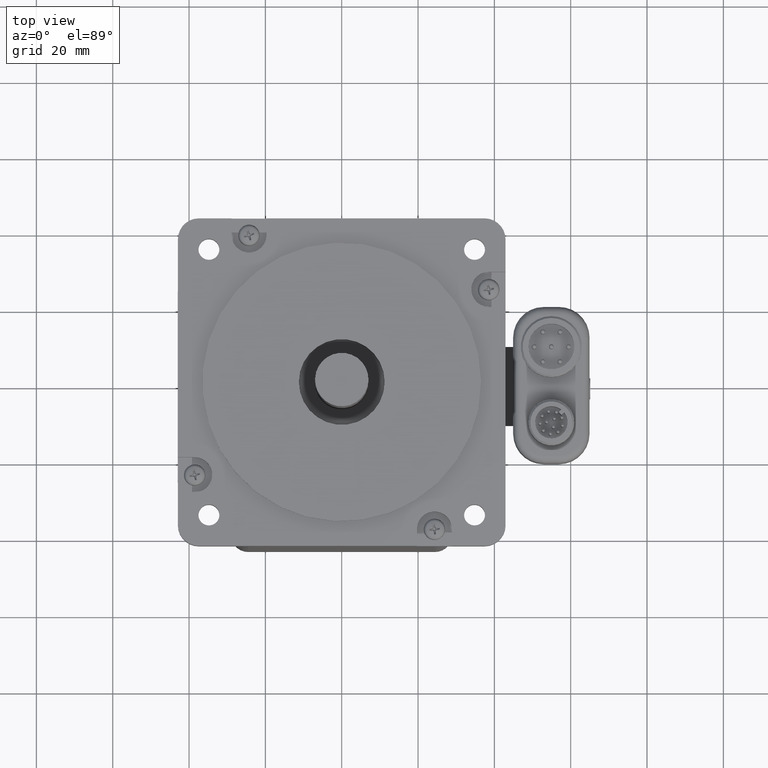
[diagram: clean part render]
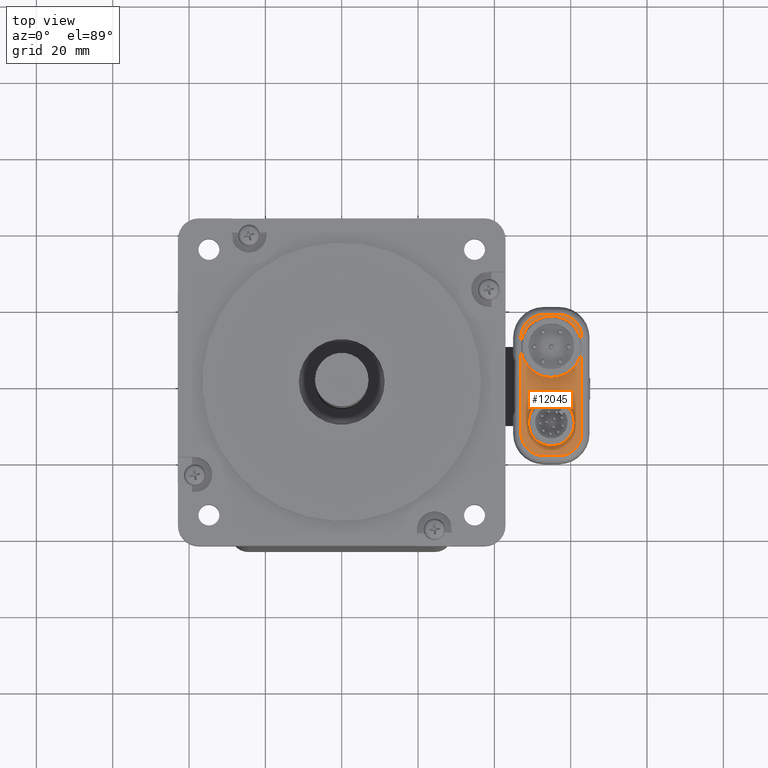
[diagram: same view with one face highlighted and labeled with its STEP entity id]
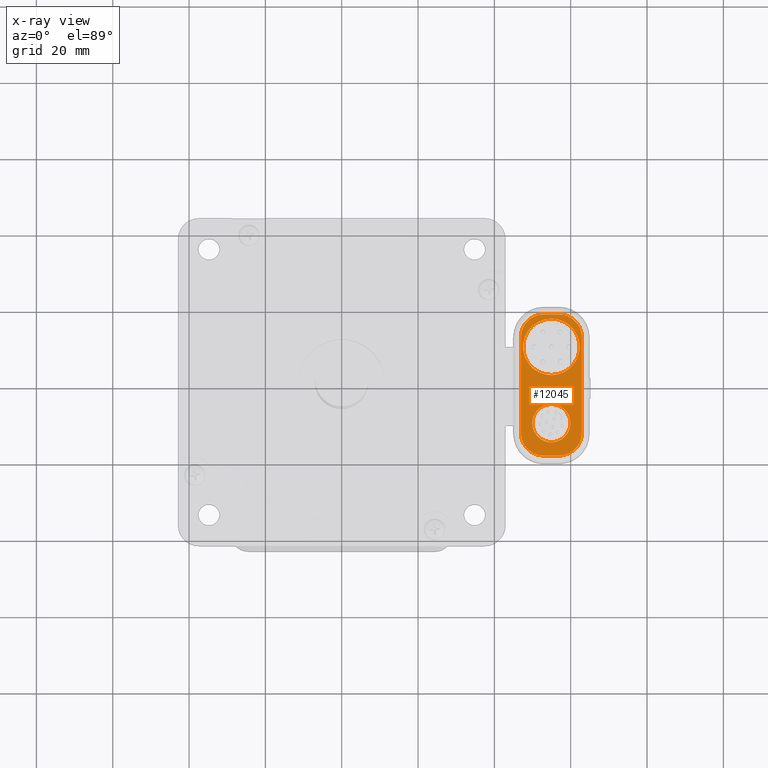
[diagram: x-ray of the same camera — body ghosted, the highlighted face saturated]
A machine part, top view. The second image highlights one B-rep face of the part: STEP entity #12045.
The next image is the same camera in x-ray: the body ghosted, the highlighted face saturated — about 0% of this face is hidden behind the body in this view.
In plain terms, the highlighted planar face has unit normal (0, 0, -1).
Its self-contained STEP definition (entity closure, byte-faithful):
#11251=CARTESIAN_POINT('',(59.925000000000125,-9.97500000000011,-28.499999999999908));
#11252=VERTEX_POINT('',#11251);
#11253=CARTESIAN_POINT('',(54.925000000000125,-9.975000000000112,-28.499999999999908));
#11254=DIRECTION('',(0.0,0.0,1.0));
#11255=DIRECTION('',(-1.0,0.0,0.0));
#11256=AXIS2_PLACEMENT_3D('',#11253,#11254,#11255);
#11257=CIRCLE('',#11256,5.000000000000001);
#11258=EDGE_CURVE('',#11252,#11252,#11257,.T.);
#11956=CARTESIAN_POINT('',(54.925000000000132,0.024999999999839,-28.499999999999908));
#11957=DIRECTION('',(0.0,0.0,-1.0));
#11958=DIRECTION('',(-1.0,0.0,0.0));
#11959=AXIS2_PLACEMENT_3D('',#11956,#11957,#11958);
#11960=PLANE('',#11959);
#11961=CARTESIAN_POINT('',(62.925000000000111,12.524999999999782,-28.499999999999908));
#11962=VERTEX_POINT('',#11961);
#11963=CARTESIAN_POINT('',(62.925000000000111,-12.47500000000022,-28.499999999999908));
#11964=VERTEX_POINT('',#11963);
#11965=CARTESIAN_POINT('',(62.925000000000111,12.524999999999782,-28.499999999999908));
#11966=DIRECTION('',(0.0,-1.0,0.0));
#11967=VECTOR('',#11966,25.0);
#11968=LINE('',#11965,#11967);
#11969=EDGE_CURVE('',#11962,#11964,#11968,.T.);
#11970=ORIENTED_EDGE('',*,*,#11969,.F.);
#11971=CARTESIAN_POINT('',(56.925000000000111,18.524999999999778,-28.499999999999908));
#11972=VERTEX_POINT('',#11971);
#11973=CARTESIAN_POINT('',(56.925000000000111,12.524999999999791,-28.499999999999908));
#11974=DIRECTION('',(0.0,0.0,-1.0));
#11975=DIRECTION('',(0.707106781186548,0.707106781186548,0.0));
#11976=AXIS2_PLACEMENT_3D('',#11973,#11974,#11975);
#11977=CIRCLE('',#11976,5.999999999999998);
#11978=EDGE_CURVE('',#11972,#11962,#11977,.T.);
#11979=ORIENTED_EDGE('',*,*,#11978,.F.);
#11980=CARTESIAN_POINT('',(52.925000000000139,18.524999999999778,-28.499999999999908));
#11981=VERTEX_POINT('',#11980);
#11982=CARTESIAN_POINT('',(52.925000000000139,18.524999999999778,-28.499999999999908));
#11983=DIRECTION('',(1.0,0.0,0.0));
#11984=VECTOR('',#11983,3.999999999999979);
#11985=LINE('',#11982,#11984);
#11986=EDGE_CURVE('',#11981,#11972,#11985,.T.);
#11987=ORIENTED_EDGE('',*,*,#11986,.F.);
#11988=CARTESIAN_POINT('',(46.925000000000111,12.524999999999791,-28.499999999999908));
#11989=VERTEX_POINT('',#11988);
#11990=CARTESIAN_POINT('',(52.925000000000139,12.524999999999782,-28.499999999999908));
#11991=DIRECTION('',(0.0,0.0,-1.0));
#11992=DIRECTION('',(-0.707106781186547,0.707106781186548,0.0));
#11993=AXIS2_PLACEMENT_3D('',#11990,#11991,#11992);
#11994=CIRCLE('',#11993,6.000000000000002);
#11995=EDGE_CURVE('',#11989,#11981,#11994,.T.);
#11996=ORIENTED_EDGE('',*,*,#11995,.F.);
#11997=CARTESIAN_POINT('',(46.925000000000111,-12.474999999999987,-28.499999999999908));
#11998=VERTEX_POINT('',#11997);
#11999=CARTESIAN_POINT('',(46.925000000000111,-12.474999999999987,-28.499999999999908));
#12000=DIRECTION('',(0.0,1.0,0.0));
#12001=VECTOR('',#12000,24.99999999999978);
#12002=LINE('',#11999,#12001);
#12003=EDGE_CURVE('',#11998,#11989,#12002,.T.);
#12004=ORIENTED_EDGE('',*,*,#12003,.F.);
#12005=CARTESIAN_POINT('',(52.924999999999827,-18.474999999999994,-28.499999999999908));
#12006=VERTEX_POINT('',#12005);
#12007=CARTESIAN_POINT('',(52.925000000000111,-12.474999999999996,-28.499999999999908));
#12008=DIRECTION('',(0.0,0.0,-1.0));
#12009=DIRECTION('',(-0.707106781186566,-0.707106781186529,0.0));
#12010=AXIS2_PLACEMENT_3D('',#12007,#12008,#12009);
#12011=CIRCLE('',#12010,5.999999999999999);
#12012=EDGE_CURVE('',#12006,#11998,#12011,.T.);
#12013=ORIENTED_EDGE('',*,*,#12012,.F.);
#12014=CARTESIAN_POINT('',(56.924999999999798,-18.475000000000232,-28.499999999999908));
#12015=VERTEX_POINT('',#12014);
#12016=CARTESIAN_POINT('',(56.924999999999798,-18.475000000000232,-28.499999999999908));
#12017=DIRECTION('',(-1.0,0.0,0.0));
#12018=VECTOR('',#12017,3.999999999999972);
#12019=LINE('',#12016,#12018);
#12020=EDGE_CURVE('',#12015,#12006,#12019,.T.);
#12021=ORIENTED_EDGE('',*,*,#12020,.F.);
#12022=CARTESIAN_POINT('',(56.925000000000111,-12.475000000000215,-28.499999999999908));
#12023=DIRECTION('',(0.0,0.0,-1.0));
#12024=DIRECTION('',(0.707106781186529,-0.707106781186566,0.0));
#12025=AXIS2_PLACEMENT_3D('',#12022,#12023,#12024);
#12026=CIRCLE('',#12025,6.00000000000001);
#12027=EDGE_CURVE('',#11964,#12015,#12026,.T.);
#12028=ORIENTED_EDGE('',*,*,#12027,.F.);
#12029=EDGE_LOOP('',(#11970,#11979,#11987,#11996,#12004,#12013,#12021,#12028));
#12030=FACE_OUTER_BOUND('',#12029,.T.);
#12031=ORIENTED_EDGE('',*,*,#11258,.F.);
#12032=EDGE_LOOP('',(#12031));
#12033=FACE_BOUND('',#12032,.T.);
#12034=CARTESIAN_POINT('',(54.925000000000111,2.624999999999782,-28.499999999999908));
#12035=VERTEX_POINT('',#12034);
#12036=CARTESIAN_POINT('',(54.925000000000111,10.02499999999978,-28.499999999999908));
#12037=DIRECTION('',(0.0,0.0,-1.0));
#12038=DIRECTION('',(0.0,1.0,0.0));
#12039=AXIS2_PLACEMENT_3D('',#12036,#12037,#12038);
#12040=CIRCLE('',#12039,7.400000000000003);
#12041=EDGE_CURVE('',#12035,#12035,#12040,.T.);
#12042=ORIENTED_EDGE('',*,*,#12041,.T.);
#12043=EDGE_LOOP('',(#12042));
#12044=FACE_BOUND('',#12043,.T.);
#12045=ADVANCED_FACE('',(#12030,#12033,#12044),#11960,.F.);